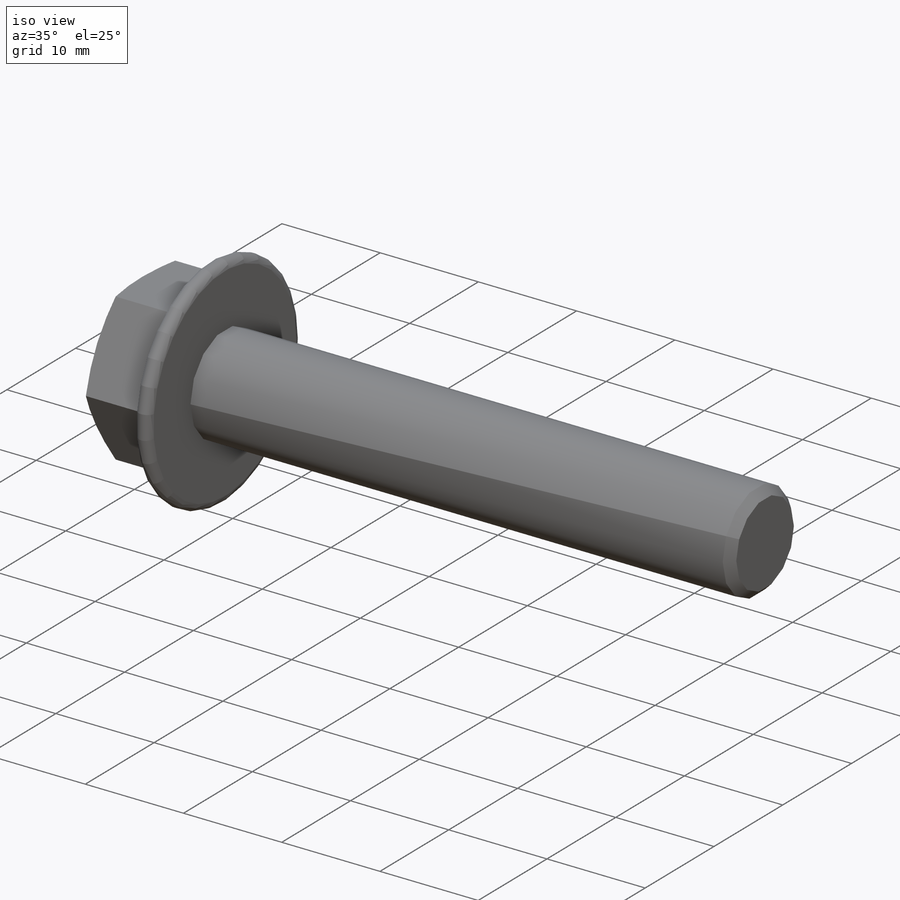
[diagram: iso view]
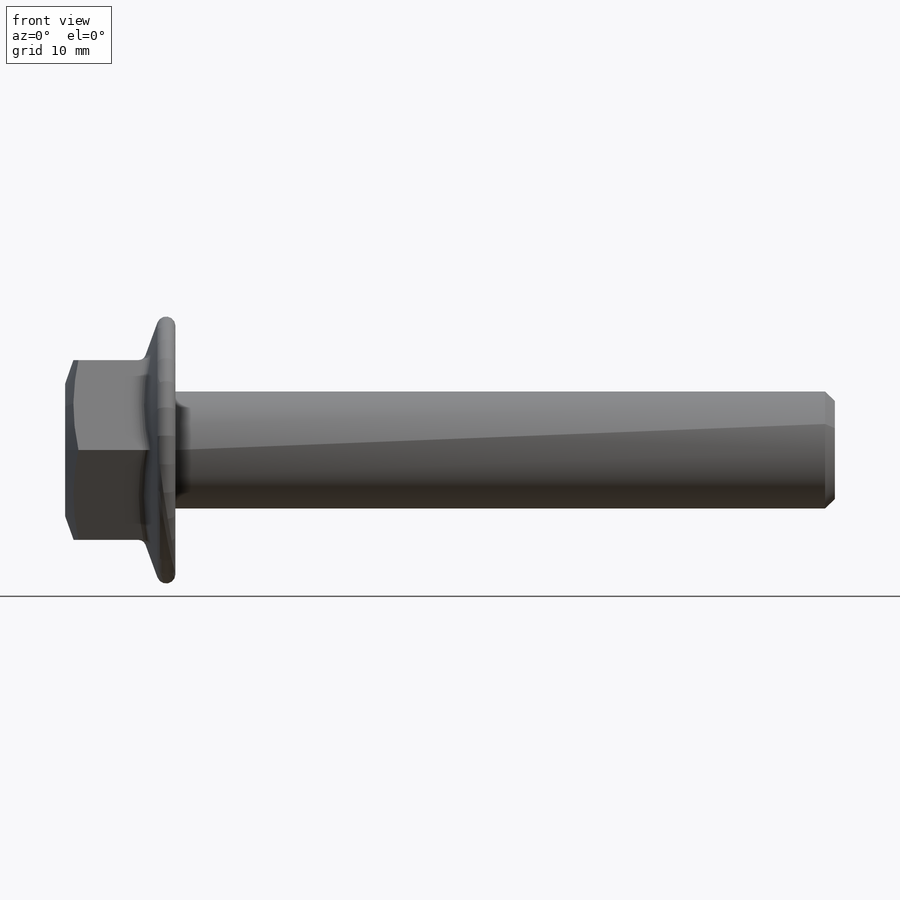
[diagram: front view]
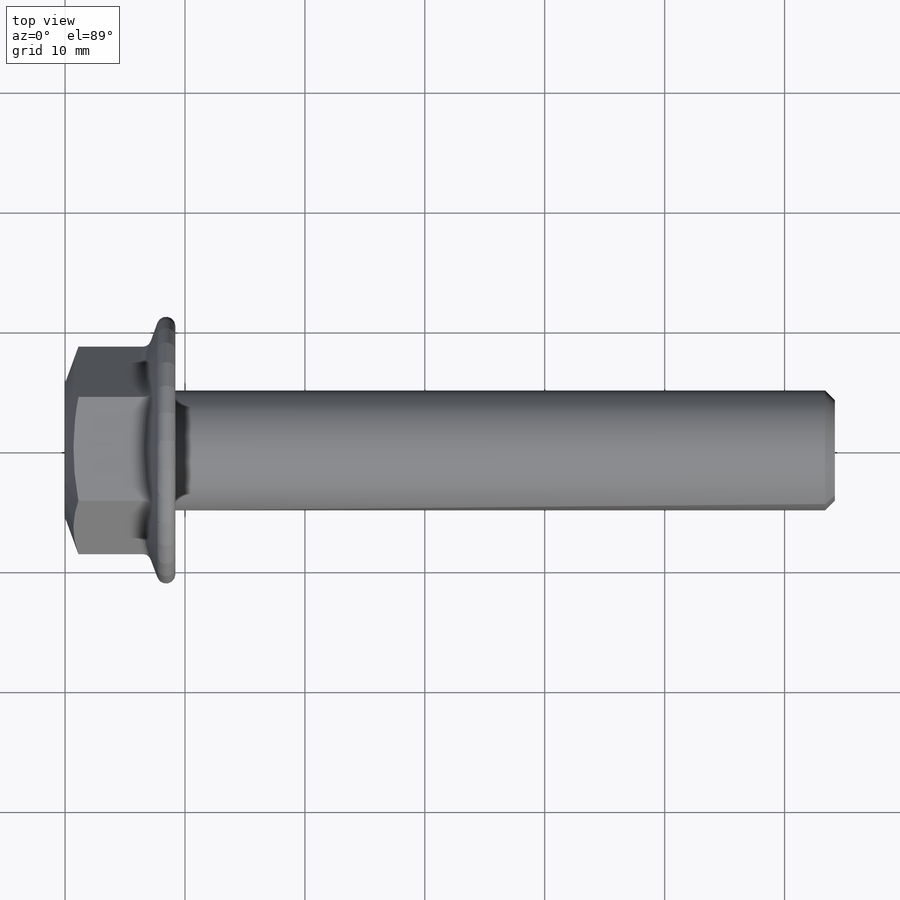
[diagram: top view]
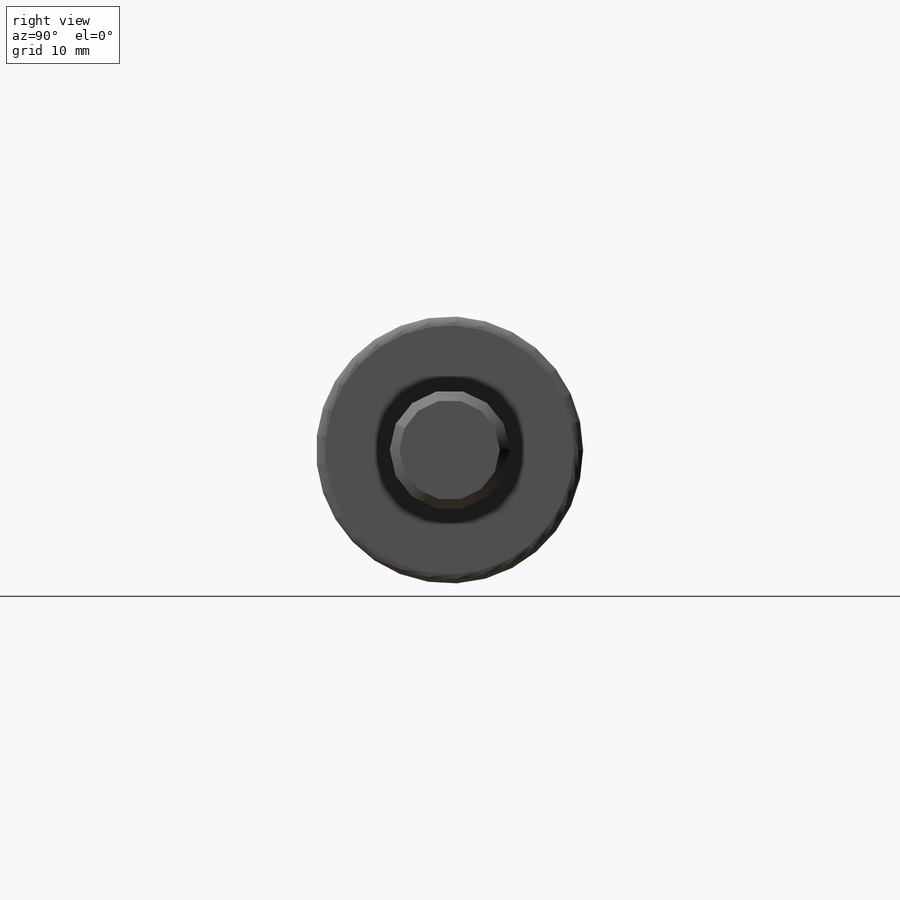
[diagram: right view]
SOLIDWORKS PART (.sldprt)
format: sldprt  version: not decoded by parser v0  size: 448,512 bytes
history: native  units: mm
features: sketch x5, extrude x2, cut_revolve x2, fillet x2, material x1, plane x1, thread x1, revolve x1, chamfer x1, pattern_linear x1 (+12 scaffold rows collapsed)
feature tree (29):
  scaffold x12  (default folders/planes/origin — collapsed)
  material  "材质 <未指定>"
  sketch  "Sketch1"  dims[s=15.0mm]
  extrude  "BaseHead"  Depth=9.2mm k=9.2mm
  plane  "Plane1"  Offset=29mm lg=29mm
  sketch  "Sketch2"  dims[d=10.0mm]
  extrude  "BaseBody"  [1 undecoded]
  thread  "ThreadCosmetic1"  Diameter=26mm b=26mm l=55mm  [1 undecoded]
  sketch  "Sketch3"  dims[c1.D1=~1.240358mm c2.D1=20.0deg c2.da=11.2mm]
  cut_revolve  "HeadChamfer"  Angle=360deg
  sketch  "Sketch5"  dims[c1.D2=~0.569815mm c1.D1=1.1mm c2.D2=14.2mm c2.D3=~6.843478mm c3.D3=20.0deg c3.D4=12.2mm c3.D1=~6.279426mm c4.D1=1.0deg c4.D5=~6.100929mm c5.D5=1.0deg c6.D5=1.1mm c6.c=1.5mm c6.dc=22.3mm c6.D3=~7.242688mm c7.D3=20.0deg]
  revolve  "Flange"  Angle=360deg
  fillet  "HeadFillet"  Radius=0.4mm r1=0.4mm
  fillet  "FlangeHexFillet"  Radius=0.6mm r2=0.6mm
  chamfer  "Chamfer1"  Distance=0.812mm Angle=45deg
  sketch  "Sketch6"  dims[D1=0.812mm]
  cut_revolve  "Cut-Revolve10"  Angle=360deg
  pattern_linear  "LPattern10"  Count1=27 Count2=1 Spacing1=0.9744mm Spacing2=50mm pitch=0.9744mm
decode coverage: 14 of 15 modeling features carry decoded parameters
note: ~ marks probable driven/reference dimensions
note: 2 parameter values undecoded
note: suppression state not decoded; provenance and decode notes live in map.json
